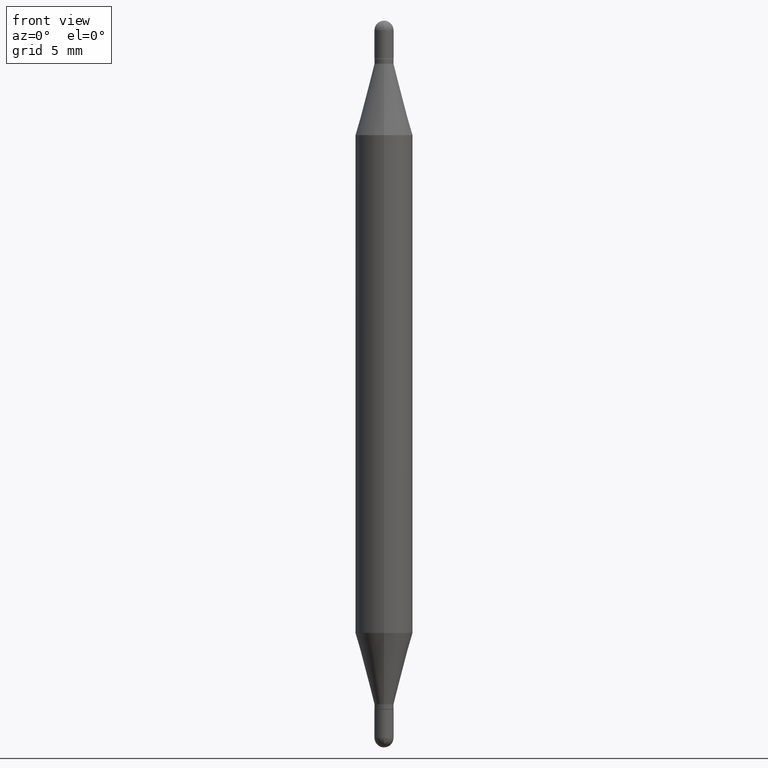
[diagram: clean part render]
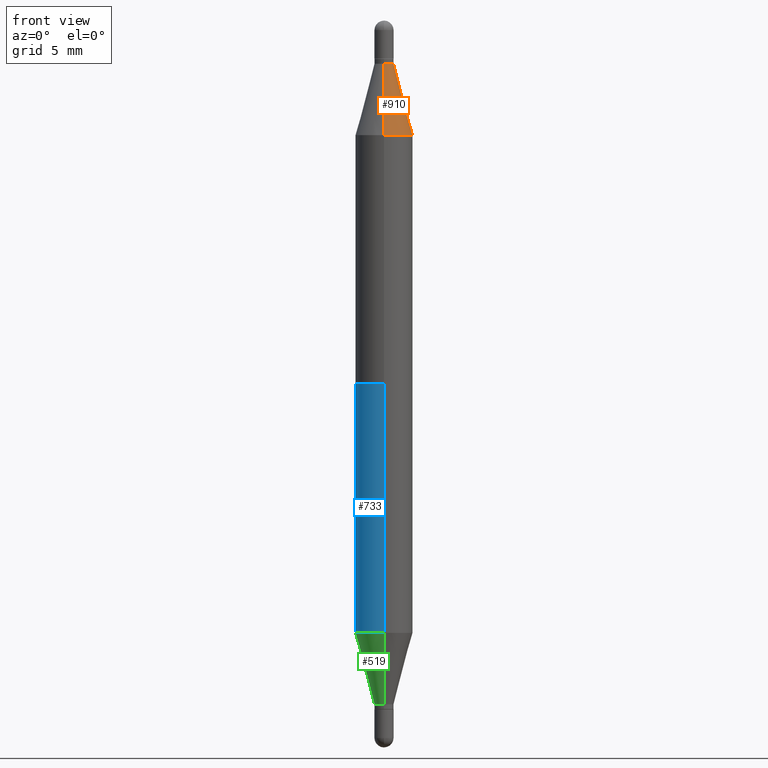
[diagram: same view with three faces highlighted in distinct colors, each labeled with its STEP entity id]
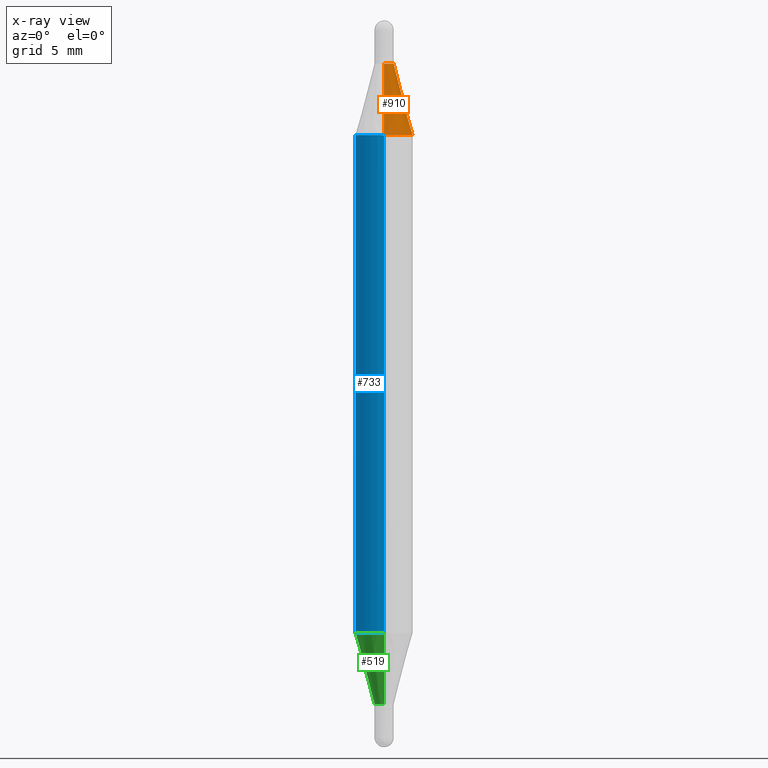
[diagram: x-ray of the same camera — body ghosted, the three highlighted faces saturated]
A machine part, front view with three faces highlighted in distinct colors.
The next image is the same camera in x-ray (body ghosted, the three faces saturated) — at least one of them is partly hidden behind the body in this view.
Their STEP definitions:

[orange] entity #910 — the highlighted conical surface has half-angle 15 deg.
#44 = DIRECTION ( 'NONE',  ( 1.775627540710965497E-15, 0.2588190451025182970, -0.9659258262890689783 ) ) ;
#94 = ORIENTED_EDGE ( 'NONE', *, *, #901, .T. ) ;
#114 = CARTESIAN_POINT ( 'NONE',  ( -4.123439461173434150E-16, -0.05905000000000085181, -0.2358561992778356042 ) ) ;
#127 = EDGE_CURVE ( 'NONE', #934, #794, #984, .T. ) ;
#154 = CARTESIAN_POINT ( 'NONE',  ( 3.075301140826860747E-29, -8.389968426939312005E-16, -0.2358561992778358263 ) ) ;
#266 = CARTESIAN_POINT ( 'NONE',  ( 3.433665956363208741E-29, -3.290929031521682305E-16, -0.08900000000000006517 ) ) ;
#290 = DIRECTION ( 'NONE',  ( -6.982962677686265922E-15, -1.000000000000000000, 3.466812174700882903E-15 ) ) ;
#302 = CARTESIAN_POINT ( 'NONE',  ( 1.351518105561318824E-16, 0.01969999999999943671, -0.08900000000000013456 ) ) ;
#319 = CARTESIAN_POINT ( 'NONE',  ( -1.375643647503834691E-16, -0.01970000000000009591, -0.08899999999999999578 ) ) ;
#335 = VECTOR ( 'NONE', #44, 39.37007874015748143 ) ;
#342 = FACE_OUTER_BOUND ( 'NONE', #485, .T. ) ;
#391 = DIRECTION ( 'NONE',  ( 2.440243022076049801E-29, 3.472130846700455674E-15, 1.000000000000000000 ) ) ;
#402 = DIRECTION ( 'NONE',  ( 2.440243022076049801E-29, 3.472130846700455674E-15, 1.000000000000000000 ) ) ;
#440 = ORIENTED_EDGE ( 'NONE', *, *, #838, .T. ) ;
#455 = CIRCLE ( 'NONE', #761, 0.05905000000000002608 ) ;
#482 = LINE ( 'NONE', #1040, #1097 ) ;
#485 = EDGE_LOOP ( 'NONE', ( #614, #812, #94, #440 ) ) ;
#505 = CIRCLE ( 'NONE', #996, 0.01969999999999976631 ) ;
#516 = DIRECTION ( 'NONE',  ( -6.982962677686265922E-15, -1.000000000000000000, 3.466812174700882903E-15 ) ) ;
#614 = ORIENTED_EDGE ( 'NONE', *, *, #127, .F. ) ;
#658 = DIRECTION ( 'NONE',  ( -6.982962677686265922E-15, -1.000000000000000000, 3.469747663417775819E-15 ) ) ;
#679 = CARTESIAN_POINT ( 'NONE',  ( 1.351518105561320303E-16, 0.01969999999999943671, -0.08900000000000013456 ) ) ;
#682 = EDGE_CURVE ( 'NONE', #856, #934, #505, .T. ) ;
#740 = CARTESIAN_POINT ( 'NONE',  ( 4.051124067684397324E-16, 0.05904999999999918647, -0.2358561992778360206 ) ) ;
#759 = VERTEX_POINT ( 'NONE', #114 ) ;
#761 = AXIS2_PLACEMENT_3D ( 'NONE', #154, #402, #658 ) ;
#762 = CONICAL_SURFACE ( 'NONE', #869, 0.01969999999999976631, 0.2617993877991502960 ) ;
#794 = VERTEX_POINT ( 'NONE', #740 ) ;
#812 = ORIENTED_EDGE ( 'NONE', *, *, #682, .F. ) ;
#838 = EDGE_CURVE ( 'NONE', #759, #794, #455, .T. ) ;
#856 = VERTEX_POINT ( 'NONE', #319 ) ;
#869 = AXIS2_PLACEMENT_3D ( 'NONE', #266, #1048, #516 ) ;
#901 = EDGE_CURVE ( 'NONE', #856, #759, #482, .T. ) ;
#910 = ADVANCED_FACE ( 'NONE', ( #342 ), #762, .T. ) ;
#934 = VERTEX_POINT ( 'NONE', #679 ) ;
#964 = DIRECTION ( 'NONE',  ( -1.807323732225330534E-15, -0.2588190451025249583, -0.9659258262890670910 ) ) ;
#982 = CARTESIAN_POINT ( 'NONE',  ( 3.433665956363208741E-29, -3.290929031521682305E-16, -0.08900000000000006517 ) ) ;
#984 = LINE ( 'NONE', #302, #335 ) ;
#996 = AXIS2_PLACEMENT_3D ( 'NONE', #982, #391, #290 ) ;
#1040 = CARTESIAN_POINT ( 'NONE',  ( -1.375643647503834691E-16, -0.01970000000000009591, -0.08899999999999999578 ) ) ;
#1048 = DIRECTION ( 'NONE',  ( -2.440243022076049801E-29, -3.472130846700455674E-15, -1.000000000000000000 ) ) ;
#1097 = VECTOR ( 'NONE', #964, 39.37007874015748143 ) ;

[blue] entity #733 — the highlighted cylindrical surface (edge-blend (fillet) strip) has radius 1.4999 mm, axis along (-0, -0, -1).
#42 = ORIENTED_EDGE ( 'NONE', *, *, #554, .F. ) ;
#43 = DIRECTION ( 'NONE',  ( -6.982962677686265922E-15, -1.000000000000000000, 4.626330217890367758E-15 ) ) ;
#111 = EDGE_CURVE ( 'NONE', #1000, #1034, #466, .T. ) ;
#117 = CARTESIAN_POINT ( 'NONE',  ( -4.123439461173434150E-16, -0.05905000000000085181, -0.2358561992778356042 ) ) ;
#123 = CARTESIAN_POINT ( 'NONE',  ( 0.000000000000000000, -5.214728217544379106E-15, -1.496099999999999985 ) ) ;
#140 = DIRECTION ( 'NONE',  ( -6.982962677686265922E-15, -1.000000000000000000, 3.469747663417775819E-15 ) ) ;
#148 = EDGE_CURVE ( 'NONE', #1000, #1019, #484, .T. ) ;
#164 = ORIENTED_EDGE ( 'NONE', *, *, #280, .T. ) ;
#196 = CARTESIAN_POINT ( 'NONE',  ( 4.051124067684272586E-16, 0.05904999999999561294, -1.260243800722164353 ) ) ;
#211 = CARTESIAN_POINT ( 'NONE',  ( 4.051124067684090161E-16, 0.05904999999999480109, -1.496100000000000207 ) ) ;
#215 = CARTESIAN_POINT ( 'NONE',  ( 3.075301140826860747E-29, -4.409548898675713398E-15, -1.260243800722164131 ) ) ;
#229 = DIRECTION ( 'NONE',  ( -6.982962677686265922E-15, -1.000000000000000000, 4.626330217890367758E-15 ) ) ;
#280 = EDGE_CURVE ( 'NONE', #1034, #1064, #807, .T. ) ;
#365 = DIRECTION ( 'NONE',  ( 2.440243022076049801E-29, 3.472130846700455674E-15, 1.000000000000000000 ) ) ;
#416 = ORIENTED_EDGE ( 'NONE', *, *, #111, .T. ) ;
#432 = LINE ( 'NONE', #767, #902 ) ;
#466 = LINE ( 'NONE', #211, #938 ) ;
#484 = CIRCLE ( 'NONE', #1087, 0.05905000000000002608 ) ;
#548 = DIRECTION ( 'NONE',  ( -2.440243022076050081E-29, -3.472130846700455674E-15, -1.000000000000000000 ) ) ;
#553 = DIRECTION ( 'NONE',  ( -2.440243022076049801E-29, 3.498964959120518163E-15, 1.000000000000000000 ) ) ;
#554 = EDGE_CURVE ( 'NONE', #1019, #1064, #432, .T. ) ;
#592 = CARTESIAN_POINT ( 'NONE',  ( 4.051124067684397324E-16, 0.05904999999999918647, -0.2358561992778360206 ) ) ;
#618 = FACE_OUTER_BOUND ( 'NONE', #933, .T. ) ;
#694 = ORIENTED_EDGE ( 'NONE', *, *, #148, .F. ) ;
#724 = CARTESIAN_POINT ( 'NONE',  ( 3.075301140826860747E-29, -8.389968426939312005E-16, -0.2358561992778358263 ) ) ;
#733 = ADVANCED_FACE ( 'NONE', ( #618 ), #894, .T. ) ;
#767 = CARTESIAN_POINT ( 'NONE',  ( -4.123439461173741313E-16, -0.05905000000000523025, -1.496099999999999541 ) ) ;
#770 = AXIS2_PLACEMENT_3D ( 'NONE', #215, #553, #229 ) ;
#801 = CARTESIAN_POINT ( 'NONE',  ( -4.123439461173434150E-16, -0.05905000000000443922, -1.260243800722163909 ) ) ;
#807 = CIRCLE ( 'NONE', #770, 0.05905000000000002608 ) ;
#808 = DIRECTION ( 'NONE',  ( -2.440243022076049801E-29, -3.472130846700455674E-15, -1.000000000000000000 ) ) ;
#830 = AXIS2_PLACEMENT_3D ( 'NONE', #123, #808, #43 ) ;
#875 = DIRECTION ( 'NONE',  ( -2.440243022076050081E-29, -3.472130846700455674E-15, -1.000000000000000000 ) ) ;
#894 = CYLINDRICAL_SURFACE ( 'NONE', #830, 0.05905000000000001914 ) ;
#902 = VECTOR ( 'NONE', #875, 39.37007874015748143 ) ;
#933 = EDGE_LOOP ( 'NONE', ( #694, #416, #164, #42 ) ) ;
#938 = VECTOR ( 'NONE', #548, 39.37007874015748143 ) ;
#1000 = VERTEX_POINT ( 'NONE', #592 ) ;
#1019 = VERTEX_POINT ( 'NONE', #117 ) ;
#1034 = VERTEX_POINT ( 'NONE', #196 ) ;
#1064 = VERTEX_POINT ( 'NONE', #801 ) ;
#1087 = AXIS2_PLACEMENT_3D ( 'NONE', #724, #365, #140 ) ;

[green] entity #519 — the highlighted conical surface has half-angle 15 deg.
#34 = CARTESIAN_POINT ( 'NONE',  ( -1.375643647503834691E-16, -0.01970000000000468945, -1.407099999999999795 ) ) ;
#58 = CIRCLE ( 'NONE', #859, 0.01969999999999976631 ) ;
#103 = EDGE_CURVE ( 'NONE', #544, #646, #58, .T. ) ;
#125 = DIRECTION ( 'NONE',  ( -6.982962677686265922E-15, -1.000000000000000000, 0.000000000000000000 ) ) ;
#172 = DIRECTION ( 'NONE',  ( -6.982962677686265922E-15, -1.000000000000000000, 0.000000000000000000 ) ) ;
#180 = DIRECTION ( 'NONE',  ( -2.440243022076049801E-29, 3.498964959120518163E-15, 1.000000000000000000 ) ) ;
#193 = CARTESIAN_POINT ( 'NONE',  ( -1.375643647503834691E-16, -0.01970000000000468945, -1.407099999999999795 ) ) ;
#196 = CARTESIAN_POINT ( 'NONE',  ( 4.051124067684272586E-16, 0.05904999999999561294, -1.260243800722164353 ) ) ;
#212 = ORIENTED_EDGE ( 'NONE', *, *, #513, .T. ) ;
#215 = CARTESIAN_POINT ( 'NONE',  ( 3.075301140826860747E-29, -4.409548898675713398E-15, -1.260243800722164131 ) ) ;
#229 = DIRECTION ( 'NONE',  ( -6.982962677686265922E-15, -1.000000000000000000, 4.626330217890367758E-15 ) ) ;
#245 = VECTOR ( 'NONE', #346, 39.37007874015748143 ) ;
#258 = CARTESIAN_POINT ( 'NONE',  ( 1.399769189447723916E-16, 0.01969999999999484663, -1.407099999999999795 ) ) ;
#268 = CARTESIAN_POINT ( 'NONE',  ( 1.399769189447726381E-16, 0.01969999999999484663, -1.407099999999999795 ) ) ;
#280 = EDGE_CURVE ( 'NONE', #1034, #1064, #807, .T. ) ;
#343 = LINE ( 'NONE', #193, #413 ) ;
#346 = DIRECTION ( 'NONE',  ( 1.839019923739600710E-15, 0.2588190451025250138, 0.9659258262890670910 ) ) ;
#413 = VECTOR ( 'NONE', #943, 39.37007874015748143 ) ;
#448 = FACE_OUTER_BOUND ( 'NONE', #451, .T. ) ;
#451 = EDGE_LOOP ( 'NONE', ( #966, #591, #212, #497 ) ) ;
#497 = ORIENTED_EDGE ( 'NONE', *, *, #280, .F. ) ;
#513 = EDGE_CURVE ( 'NONE', #646, #1064, #343, .T. ) ;
#519 = ADVANCED_FACE ( 'NONE', ( #448 ), #738, .T. ) ;
#522 = LINE ( 'NONE', #258, #245 ) ;
#544 = VERTEX_POINT ( 'NONE', #268 ) ;
#553 = DIRECTION ( 'NONE',  ( -2.440243022076049801E-29, 3.498964959120518163E-15, 1.000000000000000000 ) ) ;
#591 = ORIENTED_EDGE ( 'NONE', *, *, #103, .T. ) ;
#642 = DIRECTION ( 'NONE',  ( -2.440243022076049801E-29, 3.498964959120518163E-15, 1.000000000000000000 ) ) ;
#646 = VERTEX_POINT ( 'NONE', #34 ) ;
#681 = CARTESIAN_POINT ( 'NONE',  ( 3.433665956363208741E-29, -4.923393593978480211E-15, -1.407099999999999795 ) ) ;
#738 = CONICAL_SURFACE ( 'NONE', #958, 0.01969999999999976631, 0.2617993877991502960 ) ;
#770 = AXIS2_PLACEMENT_3D ( 'NONE', #215, #553, #229 ) ;
#801 = CARTESIAN_POINT ( 'NONE',  ( -4.123439461173434150E-16, -0.05905000000000443922, -1.260243800722163909 ) ) ;
#807 = CIRCLE ( 'NONE', #770, 0.05905000000000002608 ) ;
#859 = AXIS2_PLACEMENT_3D ( 'NONE', #979, #642, #125 ) ;
#943 = DIRECTION ( 'NONE',  ( -1.807323732225330534E-15, -0.2588190451025182415, 0.9659258262890689783 ) ) ;
#944 = EDGE_CURVE ( 'NONE', #544, #1034, #522, .T. ) ;
#958 = AXIS2_PLACEMENT_3D ( 'NONE', #681, #180, #172 ) ;
#966 = ORIENTED_EDGE ( 'NONE', *, *, #944, .F. ) ;
#979 = CARTESIAN_POINT ( 'NONE',  ( 3.433665956363208741E-29, -4.923393593978480211E-15, -1.407099999999999795 ) ) ;
#1034 = VERTEX_POINT ( 'NONE', #196 ) ;
#1064 = VERTEX_POINT ( 'NONE', #801 ) ;